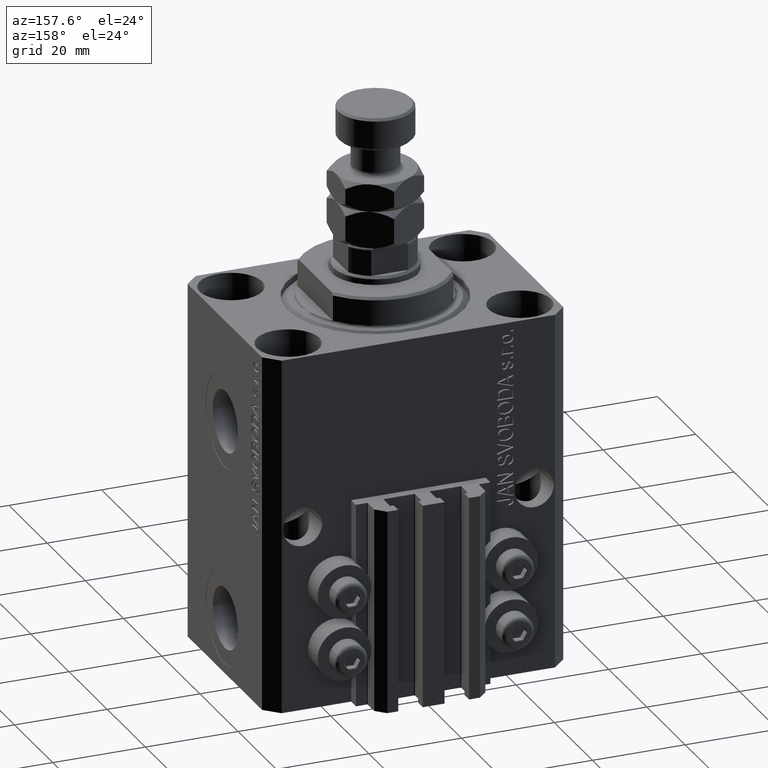
[diagram: clean part render]
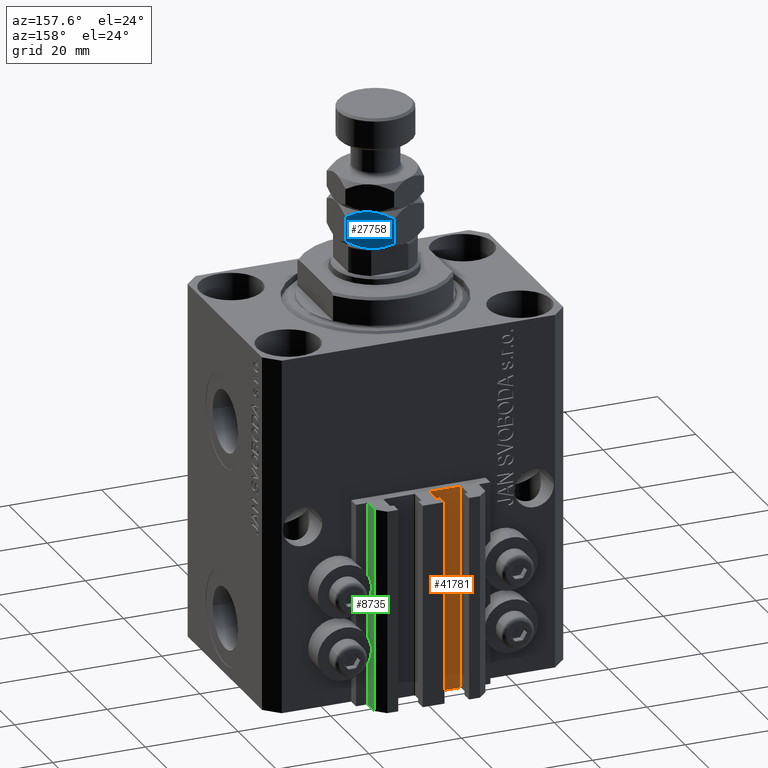
[diagram: same view with three faces highlighted in distinct colors, each labeled with its STEP entity id]
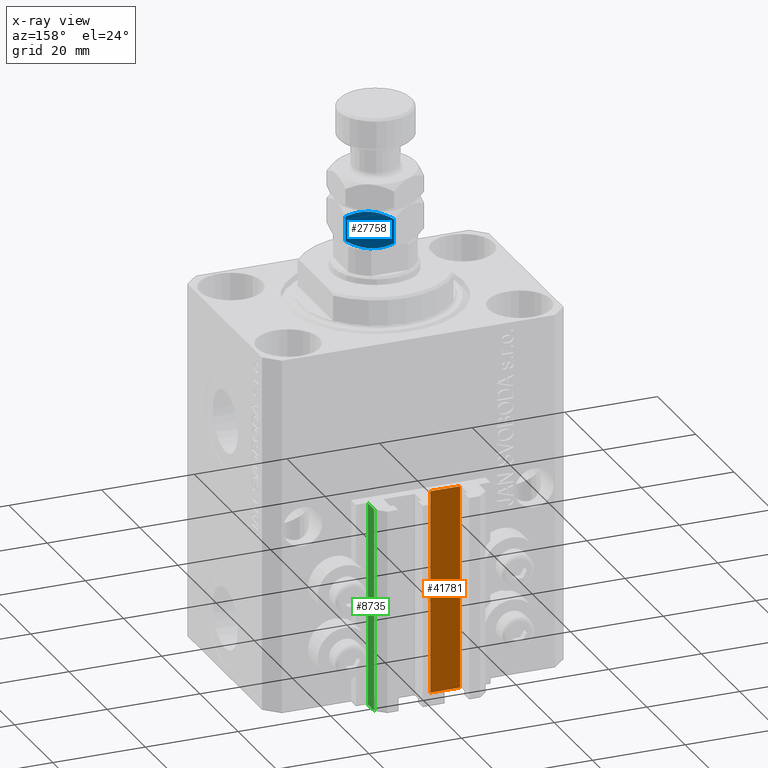
[diagram: x-ray of the same camera — body ghosted, the three highlighted faces saturated]
A machine part, auxiliary view with three faces highlighted in distinct colors.
The next image is the same camera in x-ray (body ghosted, the three faces saturated) — at least one of them is partly hidden behind the body in this view.
Their STEP definitions:

[orange] entity #41781 — the highlighted planar face has unit normal (0, 1, 0).
#528 = DIRECTION ( 'NONE',  ( 0.000000000000000000, 0.000000000000000000, 1.000000000000000000 ) ) ;
#1824 = VERTEX_POINT ( 'NONE', #4904 ) ;
#2887 = VERTEX_POINT ( 'NONE', #35318 ) ;
#4762 = ORIENTED_EDGE ( 'NONE', *, *, #44088, .T. ) ;
#4904 = CARTESIAN_POINT ( 'NONE',  ( -8.199999999999999289, 24.49999999999949551, -77.00000000000000000 ) ) ;
#7014 = CARTESIAN_POINT ( 'NONE',  ( -8.199999999999999289, 24.49999999999949551, -77.00000000000000000 ) ) ;
#10871 = CARTESIAN_POINT ( 'NONE',  ( -1.800000000000000933, 24.49999999999949551, -77.00000000000000000 ) ) ;
#11366 = DIRECTION ( 'NONE',  ( -1.000000000000000000, 0.000000000000000000, 0.000000000000000000 ) ) ;
#11625 = EDGE_CURVE ( 'NONE', #1824, #2887, #18762, .T. ) ;
#17720 = VERTEX_POINT ( 'NONE', #22213 ) ;
#18762 = LINE ( 'NONE', #7014, #34628 ) ;
#22213 = CARTESIAN_POINT ( 'NONE',  ( -1.800000000000000933, 24.49999999999949551, -33.00000000000000000 ) ) ;
#23313 = VECTOR ( 'NONE', #28820, 1000.000000000000000 ) ;
#27357 = LINE ( 'NONE', #47297, #23313 ) ;
#27603 = LINE ( 'NONE', #42593, #33082 ) ;
#27977 = ORIENTED_EDGE ( 'NONE', *, *, #33257, .F. ) ;
#28820 = DIRECTION ( 'NONE',  ( -1.000000000000000000, 0.000000000000000000, 0.000000000000000000 ) ) ;
#29712 = CARTESIAN_POINT ( 'NONE',  ( -1.800000000000000933, 24.49999999999949551, -77.00000000000000000 ) ) ;
#29953 = PLANE ( 'NONE',  #46365 ) ;
#30813 = CARTESIAN_POINT ( 'NONE',  ( -1.800000000000000933, 24.49999999999949551, -77.00000000000000000 ) ) ;
#32915 = EDGE_LOOP ( 'NONE', ( #27977, #41726, #4762, #36290 ) ) ;
#33082 = VECTOR ( 'NONE', #34843, 1000.000000000000000 ) ;
#33257 = EDGE_CURVE ( 'NONE', #17720, #2887, #27357, .T. ) ;
#33460 = DIRECTION ( 'NONE',  ( 0.000000000000000000, 0.000000000000000000, 1.000000000000000000 ) ) ;
#34628 = VECTOR ( 'NONE', #528, 1000.000000000000000 ) ;
#34843 = DIRECTION ( 'NONE',  ( 0.000000000000000000, 0.000000000000000000, 1.000000000000000000 ) ) ;
#35318 = CARTESIAN_POINT ( 'NONE',  ( -8.199999999999999289, 24.49999999999949551, -33.00000000000000000 ) ) ;
#36290 = ORIENTED_EDGE ( 'NONE', *, *, #11625, .T. ) ;
#39205 = VERTEX_POINT ( 'NONE', #30813 ) ;
#41194 = DIRECTION ( 'NONE',  ( 0.000000000000000000, 1.000000000000000000, -0.000000000000000000 ) ) ;
#41333 = LINE ( 'NONE', #10871, #44899 ) ;
#41726 = ORIENTED_EDGE ( 'NONE', *, *, #47708, .F. ) ;
#41781 = ADVANCED_FACE ( 'NONE', ( #47928 ), #29953, .T. ) ;
#42593 = CARTESIAN_POINT ( 'NONE',  ( -1.800000000000000933, 24.49999999999949551, -77.00000000000000000 ) ) ;
#44088 = EDGE_CURVE ( 'NONE', #39205, #1824, #41333, .T. ) ;
#44899 = VECTOR ( 'NONE', #11366, 1000.000000000000000 ) ;
#46365 = AXIS2_PLACEMENT_3D ( 'NONE', #29712, #41194, #33460 ) ;
#47297 = CARTESIAN_POINT ( 'NONE',  ( -1.800000000000000933, 24.49999999999949551, -33.00000000000000000 ) ) ;
#47708 = EDGE_CURVE ( 'NONE', #39205, #17720, #27603, .T. ) ;
#47928 = FACE_OUTER_BOUND ( 'NONE', #32915, .T. ) ;

[blue] entity #27758 — the highlighted planar face has unit normal (-0.5, -0.866, 0).
#90 = B_SPLINE_CURVE_WITH_KNOTS ( 'NONE', 3,
 ( #30677, #12196, #26926, #42168, #15694, #19939, #23690, #7941 ),
 .UNSPECIFIED., .F., .F.,
 ( 4, 2, 2, 4 ),
 ( 2.544313836669062791E-07, 0.002543776790731949299, 0.003815537970406091776, 0.005087299150080233819 ),
 .UNSPECIFIED. ) ;
#213 = FACE_OUTER_BOUND ( 'NONE', #9831, .T. ) ;
#659 = CARTESIAN_POINT ( 'NONE',  ( 4.249999999999998224, 7.361215932167725740, 8.000000000000000000 ) ) ;
#854 = CARTESIAN_POINT ( 'NONE',  ( 6.092930036521924109, 6.297199779484155435, 7.746375910675346255 ) ) ;
#1345 = CARTESIAN_POINT ( 'NONE',  ( 7.833539178395722224, 5.292258622869394635, 7.069826758533938715 ) ) ;
#2966 = DIRECTION ( 'NONE',  ( 0.8660254037844389297, -0.4999999999999995559, 0.000000000000000000 ) ) ;
#3385 = VERTEX_POINT ( 'NONE', #23853 ) ;
#3844 = CARTESIAN_POINT ( 'NONE',  ( 0.000000000000000000, 9.814954576223636096, 8.000000000000000000 ) ) ;
#3896 = CARTESIAN_POINT ( 'NONE',  ( 3.510754653168325135, 7.788019432158174382, 8.000000000000005329 ) ) ;
#4470 = VECTOR ( 'NONE', #37568, 1000.000000000000000 ) ;
#6822 = ORIENTED_EDGE ( 'NONE', *, *, #45759, .F. ) ;
#7941 = CARTESIAN_POINT ( 'NONE',  ( 4.249999999999996447, 7.361215932167731957, 0.000000000000000000 ) ) ;
#8211 = CARTESIAN_POINT ( 'NONE',  ( -2.175848833159079736E-16, 9.814954576223636096, 6.685045423776372786 ) ) ;
#9831 = EDGE_LOOP ( 'NONE', ( #29388, #35606, #39826, #6822, #24078, #38874 ) ) ;
#11719 = PLANE ( 'NONE',  #23042 ) ;
#12196 = CARTESIAN_POINT ( 'NONE',  ( 0.6664608216042851030, 9.430173241466063061, 0.9301732414660577319 ) ) ;
#12519 = LINE ( 'NONE', #13016, #33931 ) ;
#12849 = CARTESIAN_POINT ( 'NONE',  ( 5.733718739115172269, 6.504590518737892957, 7.839178292058171849 ) ) ;
#12882 = VERTEX_POINT ( 'NONE', #8211 ) ;
#13016 = CARTESIAN_POINT ( 'NONE',  ( 8.500000000000001776, 4.907477288111821601, 8.000000000000000000 ) ) ;
#14335 = B_SPLINE_CURVE_WITH_KNOTS ( 'NONE', 3,
 ( #659, #3896, #30626, #38616, #35364, #46824 ),
 .UNSPECIFIED., .F., .F.,
 ( 4, 2, 4 ),
 ( 0.005087299150080239890, 0.007613005268011860047, 0.01013871138594348020 ),
 .UNSPECIFIED. ) ;
#15153 = EDGE_CURVE ( 'NONE', #26896, #3385, #90, .T. ) ;
#15694 = CARTESIAN_POINT ( 'NONE',  ( 2.766281260884825954, 8.217841345597568292, 0.1608217079418317041 ) ) ;
#16186 = EDGE_CURVE ( 'NONE', #35847, #12882, #14335, .T. ) ;
#16594 = CARTESIAN_POINT ( 'NONE',  ( 4.249999999999998224, 7.361215932167725740, 8.000000000000000000 ) ) ;
#16934 = CARTESIAN_POINT ( 'NONE',  ( 1.960053746949402388E-16, 9.814954576223636096, 1.314954576223628546 ) ) ;
#17062 = EDGE_CURVE ( 'NONE', #36487, #40101, #12519, .T. ) ;
#18353 = EDGE_CURVE ( 'NONE', #12882, #26896, #26325, .T. ) ;
#19939 = CARTESIAN_POINT ( 'NONE',  ( 3.499970675361007810, 7.794245564648166535, 0.03373674959836577697 ) ) ;
#23042 = AXIS2_PLACEMENT_3D ( 'NONE', #26940, #37195, #2966 ) ;
#23690 = CARTESIAN_POINT ( 'NONE',  ( 3.877770021349439045, 7.576123010542078262, -1.325606562452980031E-15 ) ) ;
#23853 = CARTESIAN_POINT ( 'NONE',  ( 4.249999999999996447, 7.361215932167731957, 0.000000000000000000 ) ) ;
#24078 = ORIENTED_EDGE ( 'NONE', *, *, #17062, .T. ) ;
#26325 = LINE ( 'NONE', #3844, #4470 ) ;
#26573 = CARTESIAN_POINT ( 'NONE',  ( 4.989245346831671313, 6.934412432177284202, -1.204480850995614688E-15 ) ) ;
#26896 = VERTEX_POINT ( 'NONE', #16934 ) ;
#26926 = CARTESIAN_POINT ( 'NONE',  ( 1.348005192929855989, 9.036683415216572257, 0.6032092124201233752 ) ) ;
#26940 = CARTESIAN_POINT ( 'NONE',  ( 8.500000000000001776, 4.907477288111821601, 8.000000000000000000 ) ) ;
#27085 = CARTESIAN_POINT ( 'NONE',  ( 4.622229978650560511, 7.146308853793381211, 8.000000000000003553 ) ) ;
#27327 = CARTESIAN_POINT ( 'NONE',  ( 8.500000000000001776, 4.907477288111821601, 1.314954576223634763 ) ) ;
#27758 = ADVANCED_FACE ( 'NONE', ( #213 ), #11719, .F. ) ;
#29388 = ORIENTED_EDGE ( 'NONE', *, *, #15153, .F. ) ;
#30626 = CARTESIAN_POINT ( 'NONE',  ( 2.784079206026084830, 8.207565697179239450, 7.869479712616790579 ) ) ;
#30677 = CARTESIAN_POINT ( 'NONE',  ( 1.960053746949402388E-16, 9.814954576223636096, 1.314954576223628546 ) ) ;
#33931 = VECTOR ( 'NONE', #39232, 1000.000000000000000 ) ;
#34826 = CARTESIAN_POINT ( 'NONE',  ( 8.500000000000001776, 4.907477288111821601, 6.685045423776367457 ) ) ;
#35364 = CARTESIAN_POINT ( 'NONE',  ( 0.6656893889372520468, 9.430618628324037189, 7.069381371676074721 ) ) ;
#35606 = ORIENTED_EDGE ( 'NONE', *, *, #18353, .F. ) ;
#35847 = VERTEX_POINT ( 'NONE', #36999 ) ;
#36487 = VERTEX_POINT ( 'NONE', #37788 ) ;
#36999 = CARTESIAN_POINT ( 'NONE',  ( 4.249999999999998224, 7.361215932167725740, 8.000000000000000000 ) ) ;
#37195 = DIRECTION ( 'NONE',  ( -0.4999999999999995559, -0.8660254037844389297, 0.000000000000000000 ) ) ;
#37568 = DIRECTION ( 'NONE',  ( -0.000000000000000000, -0.000000000000000000, -1.000000000000000000 ) ) ;
#37788 = CARTESIAN_POINT ( 'NONE',  ( 8.500000000000001776, 4.907477288111821601, 6.685045423776367457 ) ) ;
#37806 = CARTESIAN_POINT ( 'NONE',  ( 8.500000000000001776, 4.907477288111821601, 1.314954576223634763 ) ) ;
#38616 = CARTESIAN_POINT ( 'NONE',  ( 1.350892646810553321, 9.035016342941274203, 7.399061587263881634 ) ) ;
#38874 = ORIENTED_EDGE ( 'NONE', *, *, #41142, .F. ) ;
#39069 = CARTESIAN_POINT ( 'NONE',  ( 7.151994807070148674, 5.685748449118888992, 7.396790787579876181 ) ) ;
#39232 = DIRECTION ( 'NONE',  ( -0.000000000000000000, -0.000000000000000000, -1.000000000000000000 ) ) ;
#39826 = ORIENTED_EDGE ( 'NONE', *, *, #16186, .F. ) ;
#40101 = VERTEX_POINT ( 'NONE', #37806 ) ;
#40316 = B_SPLINE_CURVE_WITH_KNOTS ( 'NONE', 3,
 ( #34826, #1345, #39069, #854, #12849, #46781, #27085, #16594 ),
 .UNSPECIFIED., .F., .F.,
 ( 4, 2, 2, 4 ),
 ( 2.544313836659951363E-07, 0.002543776790731952769, 0.003815537970406096113, 0.005087299150080239890 ),
 .UNSPECIFIED. ) ;
#41142 = EDGE_CURVE ( 'NONE', #3385, #40101, #41165, .T. ) ;
#41165 = B_SPLINE_CURVE_WITH_KNOTS ( 'NONE', 3,
 ( #48540, #26573, #45047, #45533, #44803, #27327 ),
 .UNSPECIFIED., .F., .F.,
 ( 4, 2, 4 ),
 ( 0.005087299150080233819, 0.007613005268011856577, 0.01013871138594348020 ),
 .UNSPECIFIED. ) ;
#42168 = CARTESIAN_POINT ( 'NONE',  ( 2.407069963478076779, 8.425232084851304037, 0.2536240893246513584 ) ) ;
#44803 = CARTESIAN_POINT ( 'NONE',  ( 7.834310611062749174, 5.291813236011419619, 0.9306186283239317181 ) ) ;
#45047 = CARTESIAN_POINT ( 'NONE',  ( 5.715920793973914726, 6.514866167156221799, 0.1305202873832148891 ) ) ;
#45533 = CARTESIAN_POINT ( 'NONE',  ( 7.149107353189447345, 5.687415521394179940, 0.6009384127361230288 ) ) ;
#45759 = EDGE_CURVE ( 'NONE', #36487, #35847, #40316, .T. ) ;
#46781 = CARTESIAN_POINT ( 'NONE',  ( 5.000029324638990857, 6.928186299687297378, 7.966263250401637741 ) ) ;
#46824 = CARTESIAN_POINT ( 'NONE',  ( -2.175848833159079736E-16, 9.814954576223636096, 6.685045423776372786 ) ) ;
#48540 = CARTESIAN_POINT ( 'NONE',  ( 4.249999999999996447, 7.361215932167731957, 0.000000000000000000 ) ) ;

[green] entity #8735 — the highlighted planar face has unit normal (1, 0, 0).
#3073 = CARTESIAN_POINT ( 'NONE',  ( 12.00000000000000178, 28.49999999999950973, -77.00000000000000000 ) ) ;
#3739 = VERTEX_POINT ( 'NONE', #23585 ) ;
#7158 = DIRECTION ( 'NONE',  ( 0.000000000000000000, 1.000000000000000000, 0.000000000000000000 ) ) ;
#8735 = ADVANCED_FACE ( 'NONE', ( #10222 ), #29197, .T. ) ;
#9315 = CARTESIAN_POINT ( 'NONE',  ( 12.00000000000000355, 25.19999999999951257, -77.00000000000000000 ) ) ;
#10222 = FACE_OUTER_BOUND ( 'NONE', #20184, .T. ) ;
#10825 = LINE ( 'NONE', #3073, #11926 ) ;
#10921 = CARTESIAN_POINT ( 'NONE',  ( 12.00000000000000178, 25.19999999999951257, -77.00000000000000000 ) ) ;
#11926 = VECTOR ( 'NONE', #33542, 1000.000000000000000 ) ;
#17230 = DIRECTION ( 'NONE',  ( 1.000000000000000000, 0.000000000000000000, 0.000000000000000000 ) ) ;
#18908 = ORIENTED_EDGE ( 'NONE', *, *, #22537, .F. ) ;
#20184 = EDGE_LOOP ( 'NONE', ( #25592, #18908, #45282, #26579 ) ) ;
#22537 = EDGE_CURVE ( 'NONE', #38248, #45756, #30338, .T. ) ;
#23585 = CARTESIAN_POINT ( 'NONE',  ( 12.00000000000000178, 28.49999999999950973, -33.00000000000000000 ) ) ;
#23769 = VECTOR ( 'NONE', #49039, 1000.000000000000000 ) ;
#24644 = CARTESIAN_POINT ( 'NONE',  ( 12.00000000000000178, 25.19999999999951257, -33.00000000000000000 ) ) ;
#25204 = EDGE_CURVE ( 'NONE', #45756, #3739, #36621, .T. ) ;
#25592 = ORIENTED_EDGE ( 'NONE', *, *, #25204, .F. ) ;
#26579 = ORIENTED_EDGE ( 'NONE', *, *, #30209, .T. ) ;
#28950 = CARTESIAN_POINT ( 'NONE',  ( 12.00000000000000178, 25.19999999999951257, -77.00000000000000000 ) ) ;
#29197 = PLANE ( 'NONE',  #32955 ) ;
#30209 = EDGE_CURVE ( 'NONE', #35691, #3739, #10825, .T. ) ;
#30338 = LINE ( 'NONE', #33834, #23769 ) ;
#32955 = AXIS2_PLACEMENT_3D ( 'NONE', #28950, #17230, #36701 ) ;
#33542 = DIRECTION ( 'NONE',  ( 0.000000000000000000, 0.000000000000000000, 1.000000000000000000 ) ) ;
#33834 = CARTESIAN_POINT ( 'NONE',  ( 12.00000000000000355, 25.19999999999951257, -77.00000000000000000 ) ) ;
#35570 = CARTESIAN_POINT ( 'NONE',  ( 12.00000000000000355, 25.19999999999951257, -33.00000000000000000 ) ) ;
#35691 = VERTEX_POINT ( 'NONE', #38278 ) ;
#36621 = LINE ( 'NONE', #24644, #47650 ) ;
#36701 = DIRECTION ( 'NONE',  ( 0.000000000000000000, 0.000000000000000000, -1.000000000000000000 ) ) ;
#38248 = VERTEX_POINT ( 'NONE', #9315 ) ;
#38278 = CARTESIAN_POINT ( 'NONE',  ( 12.00000000000000178, 28.49999999999950973, -77.00000000000000000 ) ) ;
#40853 = VECTOR ( 'NONE', #7158, 1000.000000000000000 ) ;
#42354 = EDGE_CURVE ( 'NONE', #38248, #35691, #45110, .T. ) ;
#45110 = LINE ( 'NONE', #10921, #40853 ) ;
#45282 = ORIENTED_EDGE ( 'NONE', *, *, #42354, .T. ) ;
#45756 = VERTEX_POINT ( 'NONE', #35570 ) ;
#47650 = VECTOR ( 'NONE', #48315, 1000.000000000000000 ) ;
#48315 = DIRECTION ( 'NONE',  ( 0.000000000000000000, 1.000000000000000000, 0.000000000000000000 ) ) ;
#49039 = DIRECTION ( 'NONE',  ( 0.000000000000000000, 0.000000000000000000, 1.000000000000000000 ) ) ;